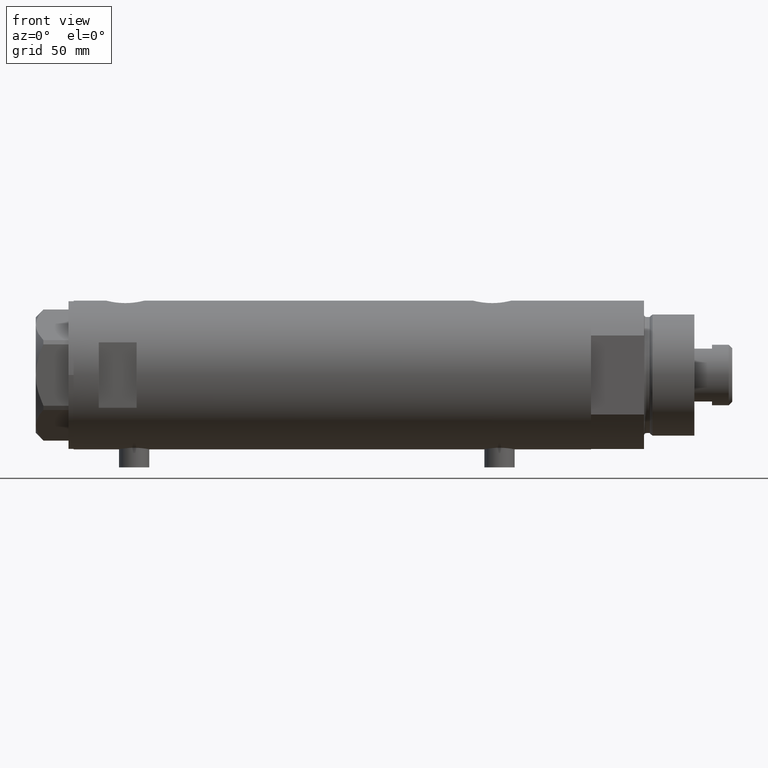
[diagram: clean part render]
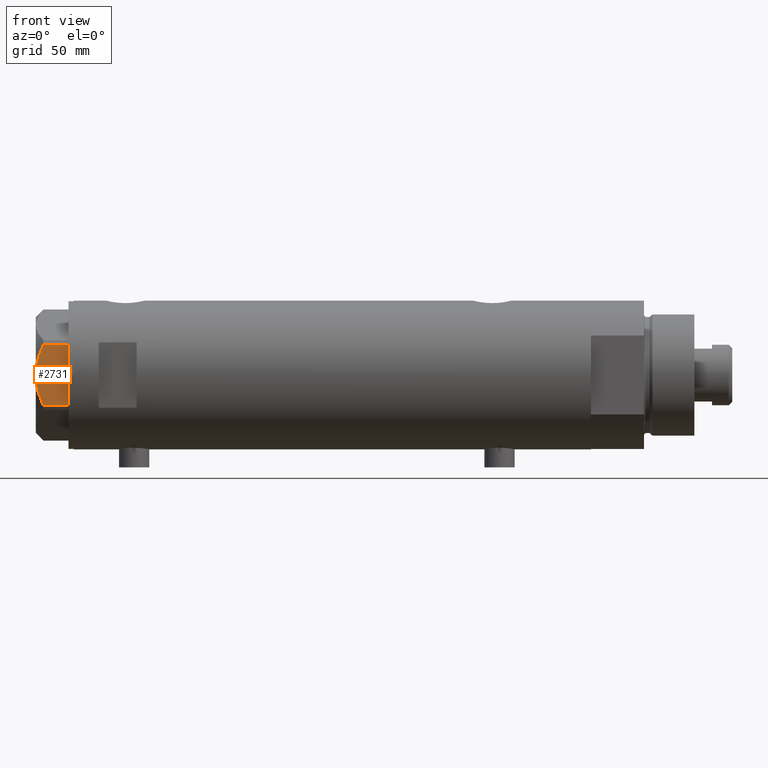
[diagram: same view with one face highlighted and labeled with its STEP entity id]
A machine part, front view. The second image highlights one B-rep face of the part: STEP entity #2731.
In plain terms, the highlighted planar face has unit normal (-0, 1, -0).
Its self-contained STEP definition (entity closure, byte-faithful):
#28 = DIRECTION ( 'NONE',  ( -3.527173405730720929E-15, 1.000000000000000000, 0.000000000000000000 ) ) ;
#140 = CARTESIAN_POINT ( 'NONE',  ( -22.99999999999992184, -8.252113629125281236, 11.58164206268022234 ) ) ;
#237 = DIRECTION ( 'NONE',  ( 3.527173405730720141E-15, -1.000000000000000000, 0.000000000000000000 ) ) ;
#297 = CARTESIAN_POINT ( 'NONE',  ( -22.99999999999990763, -12.15905619136149340, 9.983800287807616414 ) ) ;
#501 = CARTESIAN_POINT ( 'NONE',  ( -22.99999999999995381, -0.5295934231897790889, 13.00000000000009237 ) ) ;
#657 = CARTESIAN_POINT ( 'NONE',  ( -23.00000000000004619, -8.112498833180673323E-14, 13.00000000000000000 ) ) ;
#730 = ORIENTED_EDGE ( 'NONE', *, *, #2980, .F. ) ;
#736 = B_SPLINE_CURVE_WITH_KNOTS ( 'NONE', 3,
 ( #4404, #1001, #3682, #1617, #958, #3662, #1961, #3749, #2987, #657 ),
 .UNSPECIFIED., .F., .F.,
 ( 4, 2, 2, 2, 4 ),
 ( 0.03516523594057417712, 0.03831677594541236381, 0.03989254594783145369, 0.04146831595025054357, 0.04777139595992690307 ),
 .UNSPECIFIED. ) ;
#806 = EDGE_CURVE ( 'NONE', #3244, #2905, #4262, .T. ) ;
#819 = CARTESIAN_POINT ( 'NONE',  ( -22.99999999999992184, -7.253003311474400583, 11.90327681034764140 ) ) ;
#866 = EDGE_CURVE ( 'NONE', #1373, #1738, #2259, .T. ) ;
#908 = VECTOR ( 'NONE', #4308, 1000.000000000000000 ) ;
#958 = CARTESIAN_POINT ( 'NONE',  ( -22.99999999999997513, 8.246028007352348865, 11.57113180864690705 ) ) ;
#1001 = CARTESIAN_POINT ( 'NONE',  ( -22.99999999999998579, 11.20825071633914582, 10.42817330637845430 ) ) ;
#1373 = VERTEX_POINT ( 'NONE', #2579 ) ;
#1523 = CARTESIAN_POINT ( 'NONE',  ( -22.99999999999991829, -9.734726261263313418, 11.02892470009565251 ) ) ;
#1566 = CARTESIAN_POINT ( 'NONE',  ( -22.99999999999990763, -12.15905619136148985, 13.00000000000000000 ) ) ;
#1586 = LINE ( 'NONE', #1566, #908 ) ;
#1617 = CARTESIAN_POINT ( 'NONE',  ( -22.99999999999997158, 8.748091966971372813, 11.39681897828457302 ) ) ;
#1686 = DIRECTION ( 'NONE',  ( 0.000000000000000000, 0.000000000000000000, -1.000000000000000000 ) ) ;
#1738 = VERTEX_POINT ( 'NONE', #4092 ) ;
#1779 = PLANE ( 'NONE',  #4056 ) ;
#1895 = CARTESIAN_POINT ( 'NONE',  ( -22.99999999999991473, -10.22738952213796715, 10.83247031367477398 ) ) ;
#1961 = CARTESIAN_POINT ( 'NONE',  ( -22.99999999999997513, 6.734330413511418811, 12.03938974125266981 ) ) ;
#2018 = CARTESIAN_POINT ( 'NONE',  ( -22.99999999999999289, 12.15905619136131754, 13.00000000000000000 ) ) ;
#2088 = ORIENTED_EDGE ( 'NONE', *, *, #806, .F. ) ;
#2124 = DIRECTION ( 'NONE',  ( 1.000000000000000000, 3.527173405730720929E-15, -0.000000000000000000 ) ) ;
#2145 = CARTESIAN_POINT ( 'NONE',  ( -22.99999999999993250, -5.228918809624134134, 12.43333703384985611 ) ) ;
#2252 = ORIENTED_EDGE ( 'NONE', *, *, #866, .T. ) ;
#2259 = LINE ( 'NONE', #3308, #3972 ) ;
#2438 = CARTESIAN_POINT ( 'NONE',  ( -22.99999999999999289, 12.15905619136132110, 9.983800287807621743 ) ) ;
#2520 = CARTESIAN_POINT ( 'NONE',  ( -22.99999999999992895, -4.203926054641974552, 12.64168122312250553 ) ) ;
#2551 = CARTESIAN_POINT ( 'NONE',  ( -22.99999999999990763, -12.15905619136149340, 9.983800287807616414 ) ) ;
#2552 = VECTOR ( 'NONE', #1686, 1000.000000000000000 ) ;
#2579 = CARTESIAN_POINT ( 'NONE',  ( -22.99999999999999289, 12.15905619136131754, 0.000000000000000000 ) ) ;
#2731 = ADVANCED_FACE ( 'NONE', ( #4107 ), #1779, .F. ) ;
#2816 = CARTESIAN_POINT ( 'NONE',  ( -23.00000000000004619, -8.112498833180673323E-14, 13.00000000000000000 ) ) ;
#2886 = CARTESIAN_POINT ( 'NONE',  ( -22.99999999999990763, -11.20155944044818241, 10.42110268263274264 ) ) ;
#2905 = VERTEX_POINT ( 'NONE', #297 ) ;
#2980 = EDGE_CURVE ( 'NONE', #3080, #3244, #736, .T. ) ;
#2987 = CARTESIAN_POINT ( 'NONE',  ( -22.99999999999996092, 2.122900714018063795, 13.00000000000009592 ) ) ;
#3080 = VERTEX_POINT ( 'NONE', #2438 ) ;
#3113 = CARTESIAN_POINT ( 'NONE',  ( -22.99999999999999645, 13.27905619136132032, 13.00000000000000000 ) ) ;
#3211 = CARTESIAN_POINT ( 'NONE',  ( -22.99999999999994316, -2.643615312305168441, 12.85430456063626714 ) ) ;
#3244 = VERTEX_POINT ( 'NONE', #3679 ) ;
#3308 = CARTESIAN_POINT ( 'NONE',  ( -22.99999999999999645, 13.27905619136132032, 0.000000000000000000 ) ) ;
#3318 = ORIENTED_EDGE ( 'NONE', *, *, #3429, .T. ) ;
#3429 = EDGE_CURVE ( 'NONE', #1738, #2905, #1586, .T. ) ;
#3662 = CARTESIAN_POINT ( 'NONE',  ( -22.99999999999997513, 7.239756182922193695, 11.89218606342285156 ) ) ;
#3679 = CARTESIAN_POINT ( 'NONE',  ( -23.00000000000004619, -8.112498833180673323E-14, 13.00000000000000000 ) ) ;
#3682 = CARTESIAN_POINT ( 'NONE',  ( -22.99999999999998579, 10.23890159976121517, 10.84081242829091707 ) ) ;
#3733 = LINE ( 'NONE', #2018, #2552 ) ;
#3749 = CARTESIAN_POINT ( 'NONE',  ( -22.99999999999996447, 4.194757081058973824, 12.70300035152520302 ) ) ;
#3782 = EDGE_LOOP ( 'NONE', ( #730, #4458, #2252, #3318, #2088 ) ) ;
#3881 = EDGE_CURVE ( 'NONE', #3080, #1373, #3733, .T. ) ;
#3972 = VECTOR ( 'NONE', #237, 1000.000000000000000 ) ;
#4056 = AXIS2_PLACEMENT_3D ( 'NONE', #3113, #2124, #28 ) ;
#4092 = CARTESIAN_POINT ( 'NONE',  ( -22.99999999999990763, -12.15905619136148985, 0.000000000000000000 ) ) ;
#4107 = FACE_OUTER_BOUND ( 'NONE', #3782, .T. ) ;
#4166 = CARTESIAN_POINT ( 'NONE',  ( -22.99999999999993250, -2.119709279061928964, 12.90853521217319688 ) ) ;
#4239 = CARTESIAN_POINT ( 'NONE',  ( -22.99999999999994316, -1.063773509315741217, 12.98143808360682883 ) ) ;
#4262 = B_SPLINE_CURVE_WITH_KNOTS ( 'NONE', 3,
 ( #2816, #501, #4239, #4166, #3211, #2520, #2145, #819, #140, #1523, #1895, #2886, #4263, #2551 ),
 .UNSPECIFIED., .F., .F.,
 ( 4, 2, 2, 2, 2, 2, 4 ),
 ( 0.04777139595992690307, 0.04934380568070230455, 0.05091621540147769909, 0.05406103484302849510, 0.05720585428457929111, 0.05877826400535468565, 0.06035067372613008019 ),
 .UNSPECIFIED. ) ;
#4263 = CARTESIAN_POINT ( 'NONE',  ( -22.99999999999991473, -11.68282849742337248, 10.20637235269541776 ) ) ;
#4308 = DIRECTION ( 'NONE',  ( 0.000000000000000000, 0.000000000000000000, 1.000000000000000000 ) ) ;
#4404 = CARTESIAN_POINT ( 'NONE',  ( -22.99999999999999289, 12.15905619136132110, 9.983800287807621743 ) ) ;
#4458 = ORIENTED_EDGE ( 'NONE', *, *, #3881, .T. ) ;